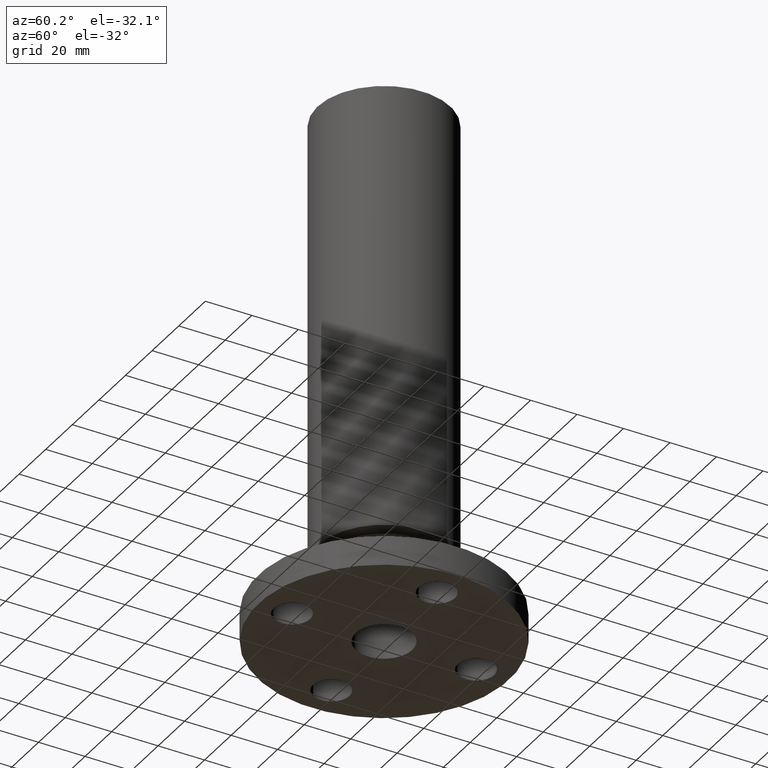
[diagram: clean part render]
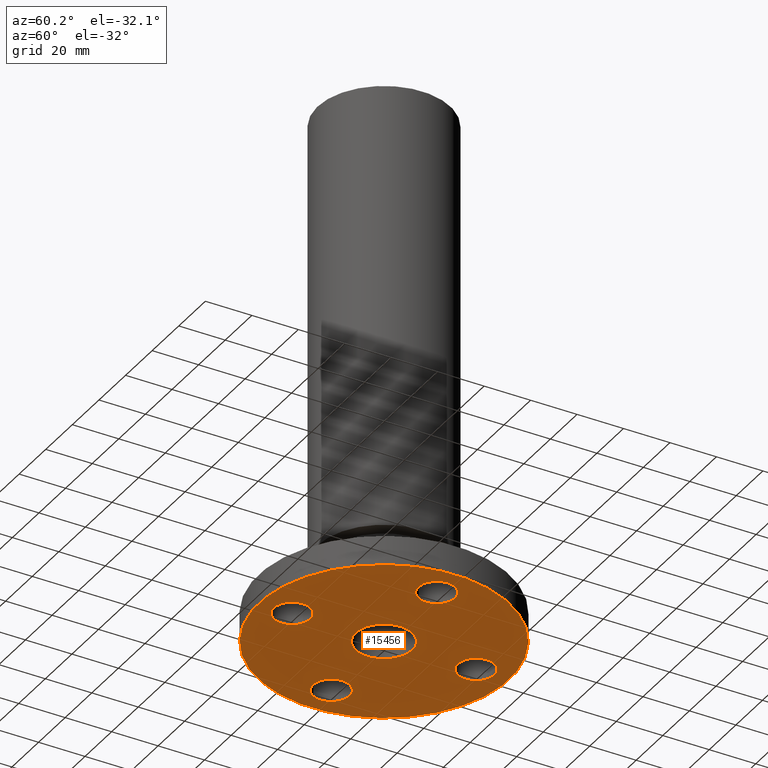
[diagram: same view with one face highlighted and labeled with its STEP entity id]
A machine part, auxiliary view. The second image highlights one B-rep face of the part: STEP entity #15456.
In plain terms, the highlighted planar face has unit normal (0, 0, 1).
Its self-contained STEP definition (entity closure, byte-faithful):
#65=AXIS2_PLACEMENT_3D('Circle Axis2P3D',#63,#64,$) ;
#82=AXIS2_PLACEMENT_3D('Circle Axis2P3D',#80,#81,$) ;
#217=AXIS2_PLACEMENT_3D('Circle Axis2P3D',#215,#216,$) ;
#243=AXIS2_PLACEMENT_3D('Circle Axis2P3D',#241,#242,$) ;
#317=AXIS2_PLACEMENT_3D('Circle Axis2P3D',#315,#316,$) ;
#329=AXIS2_PLACEMENT_3D('Circle Axis2P3D',#327,#328,$) ;
#360=AXIS2_PLACEMENT_3D('Circle Axis2P3D',#358,#359,$) ;
#372=AXIS2_PLACEMENT_3D('Circle Axis2P3D',#370,#371,$) ;
#403=AXIS2_PLACEMENT_3D('Circle Axis2P3D',#401,#402,$) ;
#415=AXIS2_PLACEMENT_3D('Circle Axis2P3D',#413,#414,$) ;
#15391=AXIS2_PLACEMENT_3D('Circle Axis2P3D',#15389,#15390,$) ;
#15417=AXIS2_PLACEMENT_3D('Circle Axis2P3D',#15415,#15416,$) ;
#15430=AXIS2_PLACEMENT_3D('Plane Axis2P3D',#15427,#15428,#15429) ;
#46=CARTESIAN_POINT('Vertex',(1.28794940582,-0.148621916968,2.2401153548E-016)) ;
#60=CARTESIAN_POINT('Vertex',(1.83205059419,0.148621916968,2.2401153548E-016)) ;
#63=CARTESIAN_POINT('Axis2P3D Location',(1.56000000001,0.,0.)) ;
#80=CARTESIAN_POINT('Axis2P3D Location',(1.56000000001,0.,0.)) ;
#215=CARTESIAN_POINT('Axis2P3D Location',(0.,0.,0.)) ;
#219=CARTESIAN_POINT('Vertex',(-1.01877926954,-1.86486294402,0.)) ;
#221=CARTESIAN_POINT('Vertex',(1.01877926954,1.86486294402,0.)) ;
#241=CARTESIAN_POINT('Axis2P3D Location',(0.,0.,0.)) ;
#305=CARTESIAN_POINT('Vertex',(-0.148621916968,-1.28794940582,2.2401153548E-016)) ;
#312=CARTESIAN_POINT('Vertex',(0.148621916968,-1.83205059419,2.2401153548E-016)) ;
#315=CARTESIAN_POINT('Axis2P3D Location',(-1.84218784217E-016,-1.56000000001,0.)) ;
#327=CARTESIAN_POINT('Axis2P3D Location',(-1.84218784217E-016,-1.56000000001,0.)) ;
#348=CARTESIAN_POINT('Vertex',(-1.28794940582,0.148621916968,2.2401153548E-016)) ;
#355=CARTESIAN_POINT('Vertex',(-1.83205059419,-0.148621916968,2.2401153548E-016)) ;
#358=CARTESIAN_POINT('Axis2P3D Location',(-1.56000000001,-1.91044900668E-016,0.)) ;
#370=CARTESIAN_POINT('Axis2P3D Location',(-1.56000000001,-1.91044900668E-016,0.)) ;
#391=CARTESIAN_POINT('Vertex',(0.148621916968,1.28794940582,2.2401153548E-016)) ;
#398=CARTESIAN_POINT('Vertex',(-0.148621916968,1.83205059419,2.2401153548E-016)) ;
#401=CARTESIAN_POINT('Axis2P3D Location',(-2.86567351002E-016,1.56000000001,0.)) ;
#413=CARTESIAN_POINT('Axis2P3D Location',(-2.86567351002E-016,1.56000000001,0.)) ;
#15389=CARTESIAN_POINT('Axis2P3D Location',(0.,0.,0.)) ;
#15393=CARTESIAN_POINT('Vertex',(-0.230124258531,-0.421239629709,0.)) ;
#15395=CARTESIAN_POINT('Vertex',(0.230124258531,0.421239629709,0.)) ;
#15415=CARTESIAN_POINT('Axis2P3D Location',(0.,0.,0.)) ;
#15427=CARTESIAN_POINT('Axis2P3D Location',(0.,0.,0.)) ;
#64=DIRECTION('Axis2P3D Direction',(0.,-0.,0.0393700787402)) ;
#81=DIRECTION('Axis2P3D Direction',(0.,-0.,0.0393700787402)) ;
#216=DIRECTION('Axis2P3D Direction',(0.,0.,-0.0393700787402)) ;
#242=DIRECTION('Axis2P3D Direction',(0.,0.,-0.0393700787402)) ;
#316=DIRECTION('Axis2P3D Direction',(-0.,0.,0.0393700787402)) ;
#328=DIRECTION('Axis2P3D Direction',(-0.,0.,0.0393700787402)) ;
#359=DIRECTION('Axis2P3D Direction',(0.,0.,0.0393700787402)) ;
#371=DIRECTION('Axis2P3D Direction',(0.,0.,0.0393700787402)) ;
#402=DIRECTION('Axis2P3D Direction',(0.,0.,0.0393700787402)) ;
#414=DIRECTION('Axis2P3D Direction',(0.,0.,0.0393700787402)) ;
#15390=DIRECTION('Axis2P3D Direction',(0.,0.,-0.0393700787402)) ;
#15416=DIRECTION('Axis2P3D Direction',(0.,0.,-0.0393700787402)) ;
#15428=DIRECTION('Axis2P3D Direction',(0.,0.,0.0393700787402)) ;
#15429=DIRECTION('Axis2P3D XDirection',(0.0393700787402,0.,0.)) ;
#15433=ORIENTED_EDGE('',*,*,#245,.T.) ;
#15434=ORIENTED_EDGE('',*,*,#223,.T.) ;
#15437=ORIENTED_EDGE('',*,*,#405,.F.) ;
#15438=ORIENTED_EDGE('',*,*,#417,.F.) ;
#15441=ORIENTED_EDGE('',*,*,#362,.F.) ;
#15442=ORIENTED_EDGE('',*,*,#374,.F.) ;
#15445=ORIENTED_EDGE('',*,*,#319,.F.) ;
#15446=ORIENTED_EDGE('',*,*,#331,.F.) ;
#15449=ORIENTED_EDGE('',*,*,#84,.F.) ;
#15450=ORIENTED_EDGE('',*,*,#67,.F.) ;
#15453=ORIENTED_EDGE('',*,*,#15419,.T.) ;
#15454=ORIENTED_EDGE('',*,*,#15397,.T.) ;
#15439=FACE_BOUND('',#15436,.T.) ;
#15443=FACE_BOUND('',#15440,.T.) ;
#15447=FACE_BOUND('',#15444,.T.) ;
#15451=FACE_BOUND('',#15448,.T.) ;
#15455=FACE_BOUND('',#15452,.T.) ;
#15456=ADVANCED_FACE('PartBody',(#15435,#15439,#15443,#15447,#15451,#15455),#15431,.F.) ;
#66=CIRCLE('generated circle',#65,0.310000000001) ;
#83=CIRCLE('generated circle',#82,0.310000000001) ;
#218=CIRCLE('generated circle',#217,2.12500000001) ;
#244=CIRCLE('generated circle',#243,2.12500000001) ;
#318=CIRCLE('generated circle',#317,0.310000000001) ;
#330=CIRCLE('generated circle',#329,0.310000000001) ;
#361=CIRCLE('generated circle',#360,0.310000000001) ;
#373=CIRCLE('generated circle',#372,0.310000000001) ;
#404=CIRCLE('generated circle',#403,0.310000000001) ;
#416=CIRCLE('generated circle',#415,0.310000000001) ;
#15392=CIRCLE('generated circle',#15391,0.480000000002) ;
#15418=CIRCLE('generated circle',#15417,0.480000000002) ;
#67=EDGE_CURVE('',#61,#47,#66,.F.) ;
#84=EDGE_CURVE('',#47,#61,#83,.F.) ;
#223=EDGE_CURVE('',#220,#222,#218,.T.) ;
#245=EDGE_CURVE('',#222,#220,#244,.T.) ;
#319=EDGE_CURVE('',#313,#306,#318,.F.) ;
#331=EDGE_CURVE('',#306,#313,#330,.F.) ;
#362=EDGE_CURVE('',#356,#349,#361,.F.) ;
#374=EDGE_CURVE('',#349,#356,#373,.F.) ;
#405=EDGE_CURVE('',#399,#392,#404,.F.) ;
#417=EDGE_CURVE('',#392,#399,#416,.F.) ;
#15397=EDGE_CURVE('',#15394,#15396,#15392,.F.) ;
#15419=EDGE_CURVE('',#15396,#15394,#15418,.F.) ;
#15432=EDGE_LOOP('',(#15433,#15434)) ;
#15436=EDGE_LOOP('',(#15437,#15438)) ;
#15440=EDGE_LOOP('',(#15441,#15442)) ;
#15444=EDGE_LOOP('',(#15445,#15446)) ;
#15448=EDGE_LOOP('',(#15449,#15450)) ;
#15452=EDGE_LOOP('',(#15453,#15454)) ;
#15435=FACE_OUTER_BOUND('',#15432,.T.) ;
#15431=PLANE('',#15430) ;
#47=VERTEX_POINT('',#46) ;
#61=VERTEX_POINT('',#60) ;
#220=VERTEX_POINT('',#219) ;
#222=VERTEX_POINT('',#221) ;
#306=VERTEX_POINT('',#305) ;
#313=VERTEX_POINT('',#312) ;
#349=VERTEX_POINT('',#348) ;
#356=VERTEX_POINT('',#355) ;
#392=VERTEX_POINT('',#391) ;
#399=VERTEX_POINT('',#398) ;
#15394=VERTEX_POINT('',#15393) ;
#15396=VERTEX_POINT('',#15395) ;